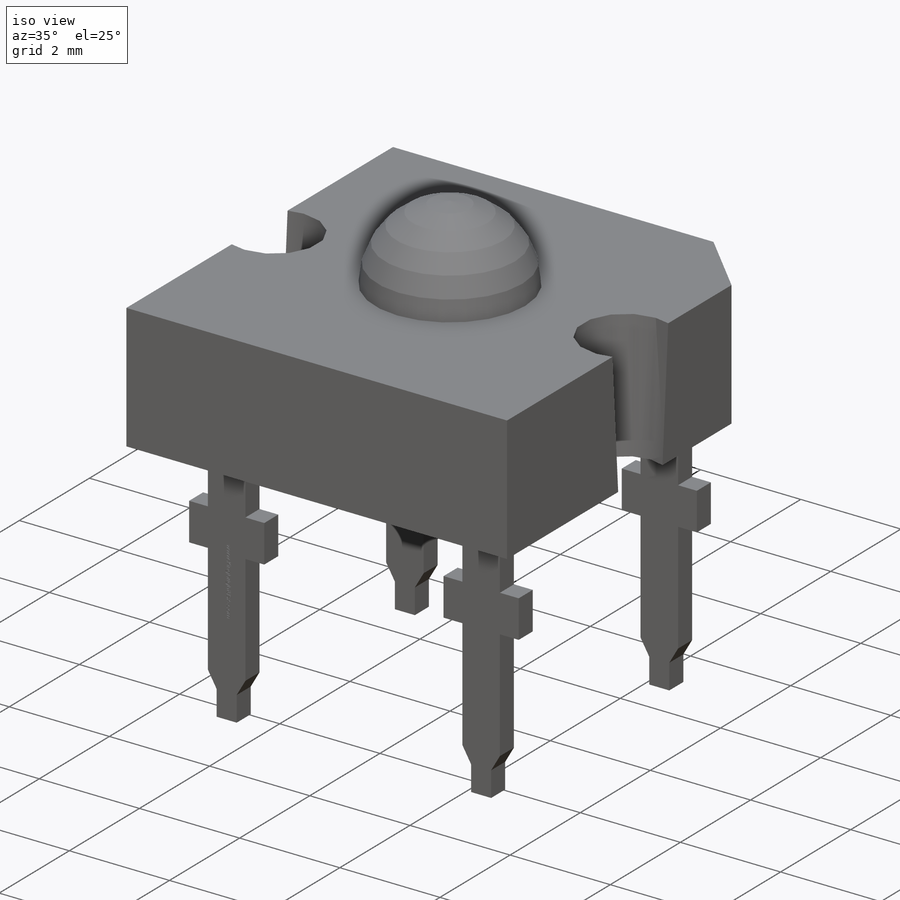
[diagram: iso view]
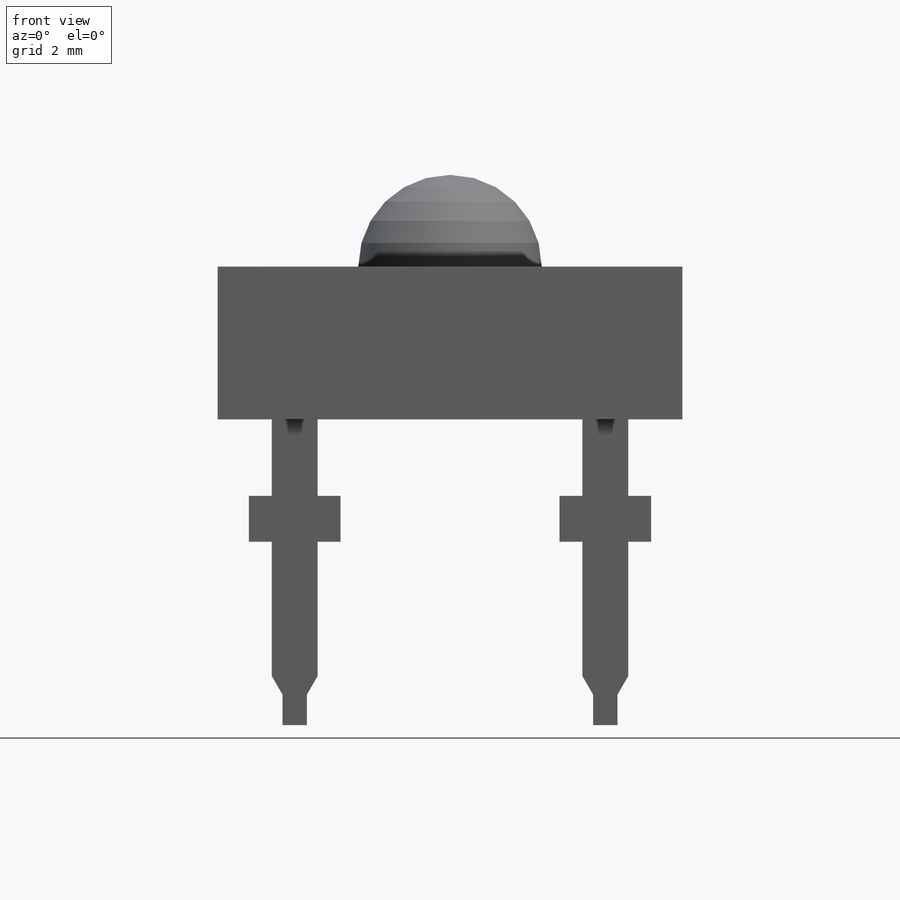
[diagram: front view]
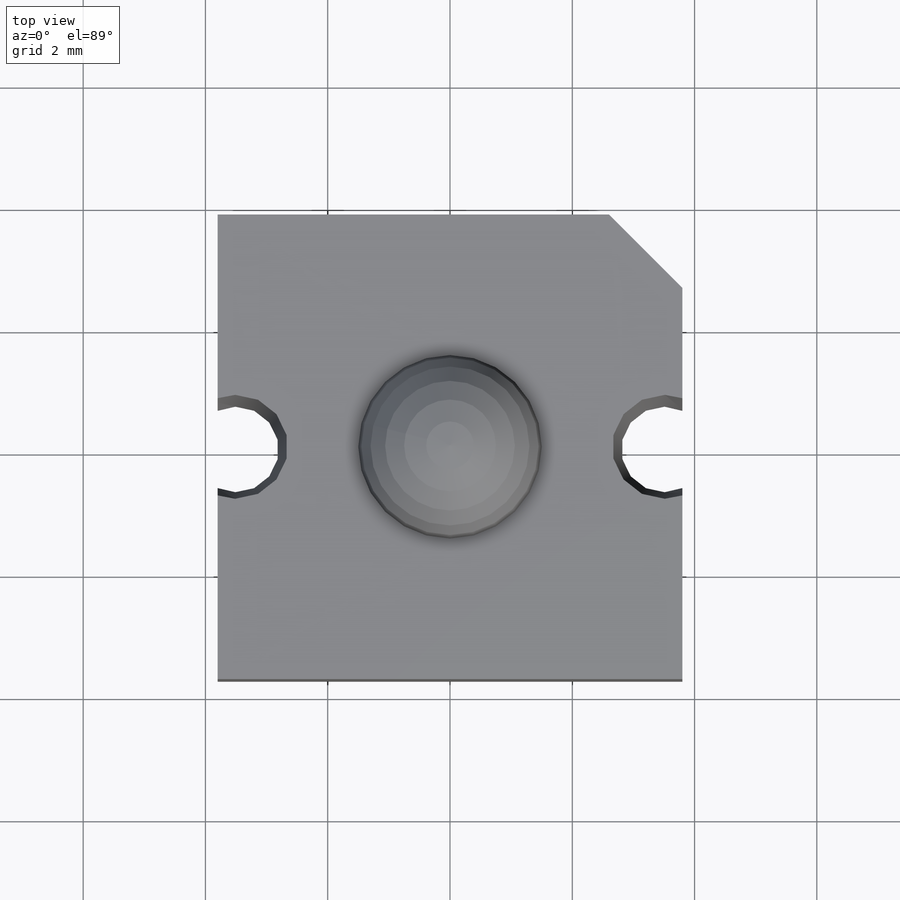
[diagram: top view]
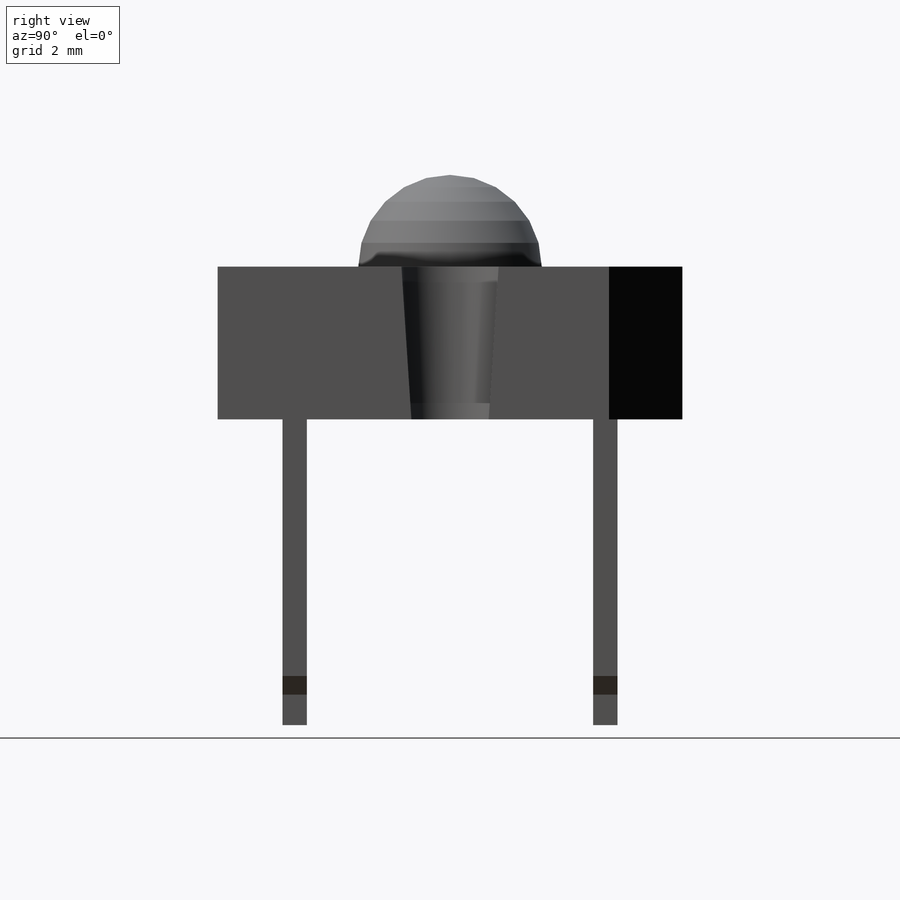
[diagram: right view]
SOLIDWORKS PART (.sldprt)
format: sldprt  version: not decoded by parser v0  size: 733,184 bytes
history: native  units: mm
features: sketch x7, extrude x3, cut_extrude x3, plane x2, material x1, revolve x1 (+11 scaffold rows collapsed)
feature tree (28):
  scaffold x11  (default folders/planes/origin — collapsed)
  material  "Material <not specified>"
  sketch  "Sketch1"  dims[D3=3.0mm D1=2.5mm D2=7.6mm D4=4.0mm]
  extrude  "Extrude1"  Depth=7.6mm
  revolve  "Revolve1"  [1 undecoded]
  sketch  "Sketch1<3>"  dims[D1=360.0deg]
  plane  "Plane1"  Offset=2.54mm
  sketch  "Sketch2"  dims[c1.D1=5.0mm c1.D2=0.4mm c1.D3=0.75mm c1.D4=0.5mm c1.D5=~0.809189mm c2.D5=~102.489801deg c3.D5=~0.809189mm c4.D5=60.0deg c4.D6=5.08mm c4.D7=1.5mm c4.D8=6.0mm c4.D9=0.75mm]
  plane  "Plane2"  Offset=2.54mm
  sketch  "Sketch3"
  extrude  "Extrude2"  Depth=0.4mm
  extrude  "Extrude3"  Depth=0.4mm
  sketch  "Sketch4"  dims[c1.D4=1.7mm c1.D1=~2.018813mm c2.D1=45.0deg c2.D2=1.2mm c2.D3=0.3mm]
  cut_extrude  "Cut-Extrude1"  [1 undecoded]
  cut_extrude  "Cut-Extrude2"  [1 undecoded]
  sketch  "Sketch4<3>"  dims[D3=3.45deg]
  sketch  "Sketch5"
  cut_extrude  "Cut-Extrude3"  Depth=0.01mm
decode coverage: 9 of 14 modeling features carry decoded parameters
note: ~ marks probable driven/reference dimensions
note: 3 parameter values undecoded
summary: no parameter record found for 3 features
note: suppression state not decoded; provenance and decode notes live in map.json
